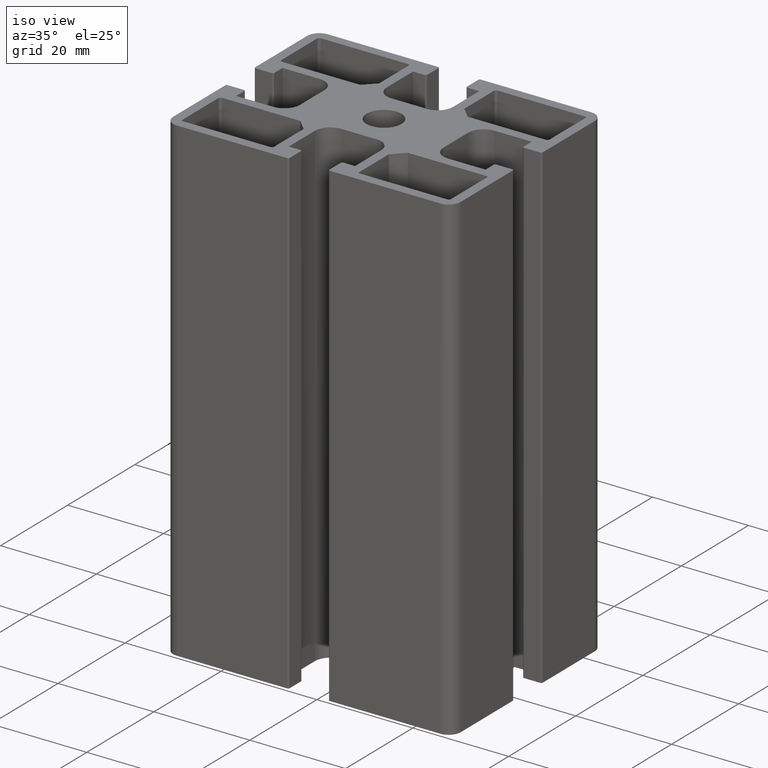
[diagram: clean part render]
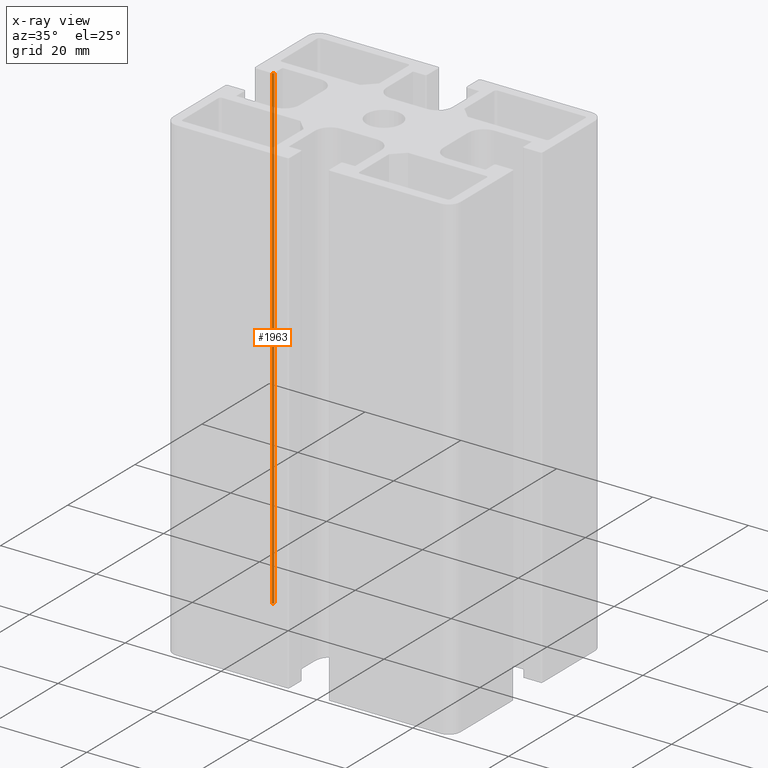
[diagram: x-ray — body ghosted, one internal face saturated and labeled with its STEP entity id]
A machine part, iso view, then the same camera in x-ray: the body is ghosted and one INTERNAL B-rep face — a face not visible from any outside direction — is saturated and labeled: STEP entity #1963.
In plain terms, the highlighted cylindrical surface (edge-blend (fillet) strip) has radius 0.3 mm, axis along (0, 0, 1).
Its self-contained STEP definition (entity closure, byte-faithful):
#66=CIRCLE('',#2071,0.299999999999996);
#94=CIRCLE('',#2133,0.299999999999996);
#135=CYLINDRICAL_SURFACE('',#2132,0.299999999999996);
#216=FACE_OUTER_BOUND('',#321,.T.);
#321=EDGE_LOOP('',(#1617,#1618,#1619,#1620));
#518=LINE('',#3210,#726);
#519=LINE('',#3214,#727);
#726=VECTOR('',#2610,100.);
#727=VECTOR('',#2615,100.);
#874=VERTEX_POINT('',#3016);
#875=VERTEX_POINT('',#3018);
#937=VERTEX_POINT('',#3208);
#938=VERTEX_POINT('',#3212);
#1100=EDGE_CURVE('',#874,#875,#66,.T.);
#1196=EDGE_CURVE('',#937,#874,#518,.T.);
#1197=EDGE_CURVE('',#938,#937,#94,.T.);
#1198=EDGE_CURVE('',#938,#875,#519,.T.);
#1617=ORIENTED_EDGE('',*,*,#1196,.F.);
#1618=ORIENTED_EDGE('',*,*,#1197,.F.);
#1619=ORIENTED_EDGE('',*,*,#1198,.T.);
#1620=ORIENTED_EDGE('',*,*,#1100,.F.);
#1963=ADVANCED_FACE('',(#216),#135,.T.);
#2071=AXIS2_PLACEMENT_3D('',#3019,#2420,#2421);
#2132=AXIS2_PLACEMENT_3D('',#3211,#2611,#2612);
#2133=AXIS2_PLACEMENT_3D('',#3213,#2613,#2614);
#2420=DIRECTION('center_axis',(0.,0.,-1.));
#2421=DIRECTION('ref_axis',(0.,1.,0.));
#2610=DIRECTION('',(0.,0.,-1.));
#2611=DIRECTION('center_axis',(0.,0.,1.));
#2612=DIRECTION('ref_axis',(0.,1.,0.));
#2613=DIRECTION('center_axis',(0.,0.,1.));
#2614=DIRECTION('ref_axis',(0.,1.,0.));
#2615=DIRECTION('',(0.,0.,-1.));
#3016=CARTESIAN_POINT('',(-25.9999999999982,4.44999999999993,-50.));
#3018=CARTESIAN_POINT('',(-26.2999999999982,4.14999999999992,-50.));
#3019=CARTESIAN_POINT('Origin',(-26.2999999999982,4.44999999999993,-50.));
#3208=CARTESIAN_POINT('',(-25.9999999999982,4.44999999999993,50.));
#3210=CARTESIAN_POINT('',(-25.9999999999982,4.44999999999993,0.));
#3211=CARTESIAN_POINT('Origin',(-26.2999999999982,4.44999999999993,0.));
#3212=CARTESIAN_POINT('',(-26.2999999999982,4.14999999999992,50.));
#3213=CARTESIAN_POINT('Origin',(-26.2999999999982,4.44999999999993,50.));
#3214=CARTESIAN_POINT('',(-26.2999999999982,4.14999999999992,0.));